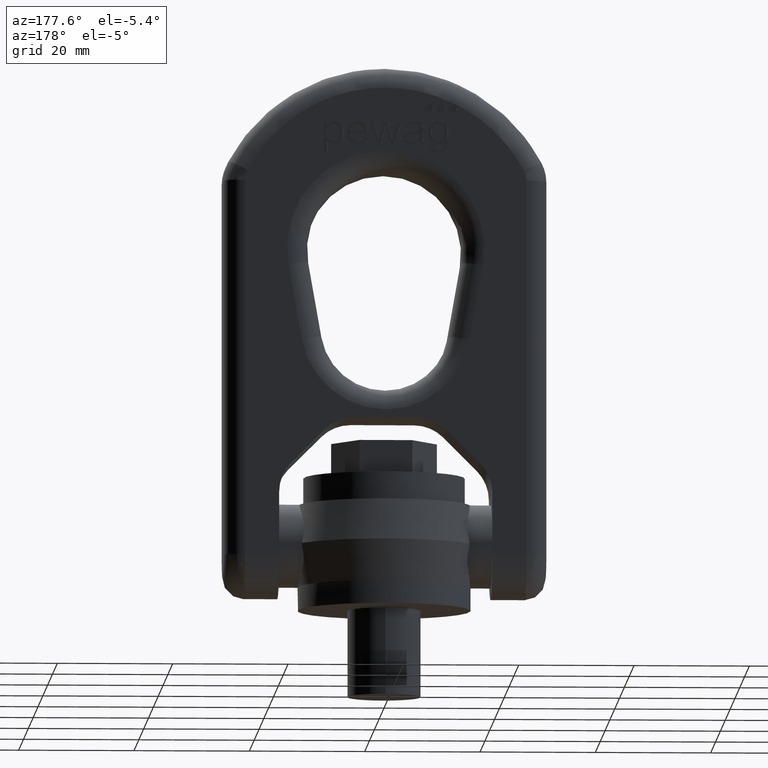
[diagram: clean part render]
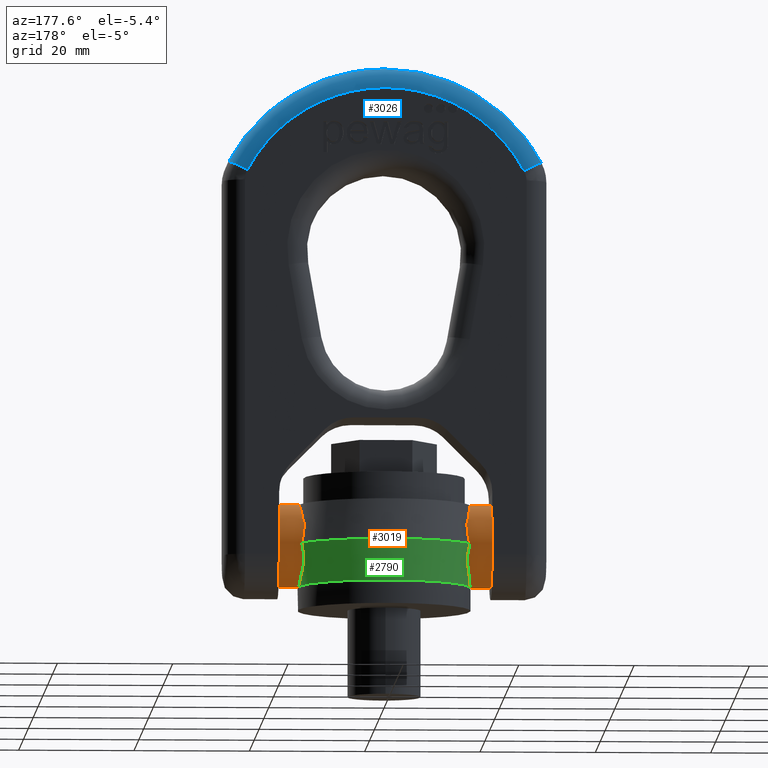
[diagram: same view with three faces highlighted in distinct colors, each labeled with its STEP entity id]
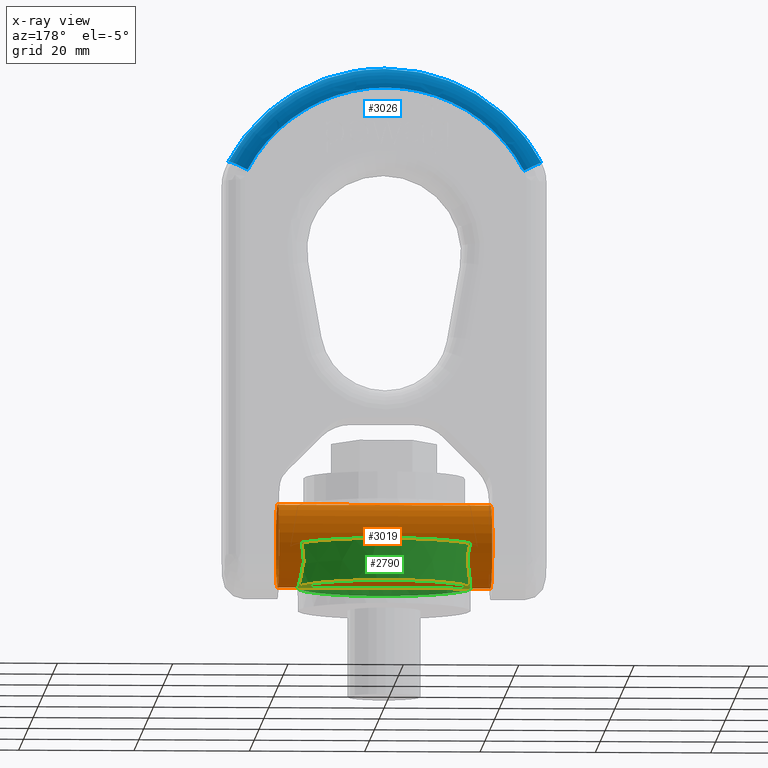
[diagram: x-ray of the same camera — body ghosted, the three highlighted faces saturated]
A machine part, auxiliary view with three faces highlighted in distinct colors.
The next image is the same camera in x-ray (body ghosted, the three faces saturated) — at least one of them is partly hidden behind the body in this view.
Their STEP definitions:

[orange] entity #3019 — the highlighted cylindrical surface (bore or boss wall) has radius 7.2 mm, axis along (-1, 0, 0).
#3019=ADVANCED_FACE('',(#3135,#3136),#3060,.T.);
#3060=CYLINDRICAL_SURFACE('',#6029,7.2);
#3135=FACE_BOUND('',#3411,.T.);
#3136=FACE_BOUND('',#3412,.T.);
#3411=EDGE_LOOP('',(#4613,#4614));
#3412=EDGE_LOOP('',(#4615,#4616));
#4613=ORIENTED_EDGE('',*,*,#5162,.F.);
#4614=ORIENTED_EDGE('',*,*,#5716,.F.);
#4615=ORIENTED_EDGE('',*,*,#5166,.F.);
#4616=ORIENTED_EDGE('',*,*,#5717,.F.);
#4729=VERTEX_POINT('',#7037);
#4731=VERTEX_POINT('',#7040);
#4733=VERTEX_POINT('',#7046);
#4735=VERTEX_POINT('',#7049);
#5162=EDGE_CURVE('',#4729,#4731,#5757,.T.);
#5166=EDGE_CURVE('',#4733,#4735,#5758,.T.);
#5716=EDGE_CURVE('',#4731,#4729,#5801,.T.);
#5717=EDGE_CURVE('',#4735,#4733,#5802,.T.);
#5757=CIRCLE('',#5859,7.2);
#5758=CIRCLE('',#5861,7.2);
#5801=CIRCLE('',#6012,7.2);
#5802=CIRCLE('',#6014,7.2);
#5859=AXIS2_PLACEMENT_3D('',#7039,#6165,#6166);
#5861=AXIS2_PLACEMENT_3D('',#7048,#6172,#6173);
#6012=AXIS2_PLACEMENT_3D('',#9690,#6825,#6826);
#6014=AXIS2_PLACEMENT_3D('',#9692,#6829,#6830);
#6029=AXIS2_PLACEMENT_3D('',#9714,#6866,#6867);
#6165=DIRECTION('',(-1.,0.,1.50845519650157E-16));
#6166=DIRECTION('',(0.,0.,-1.));
#6172=DIRECTION('',(1.,0.,1.50845519650157E-16));
#6173=DIRECTION('',(0.,0.,1.));
#6825=DIRECTION('',(-1.,0.,1.50845519650157E-16));
#6826=DIRECTION('',(0.,0.,-1.));
#6829=DIRECTION('',(1.,0.,1.50845519650157E-16));
#6830=DIRECTION('',(0.,0.,1.));
#6866=DIRECTION('',(-1.,0.,0.));
#6867=DIRECTION('',(0.,0.,1.));
#7037=CARTESIAN_POINT('',(-18.48,-7.2,11.2));
#7039=CARTESIAN_POINT('',(-18.48,0.,11.2));
#7040=CARTESIAN_POINT('',(-18.48,7.20000000000004,11.2));
#7046=CARTESIAN_POINT('',(18.48,-7.2,11.2));
#7048=CARTESIAN_POINT('',(18.48,0.,11.2));
#7049=CARTESIAN_POINT('',(18.48,7.19999999999996,11.2));
#9690=CARTESIAN_POINT('',(-18.48,0.,11.2));
#9692=CARTESIAN_POINT('',(18.48,0.,11.2));
#9714=CARTESIAN_POINT('',(28.,0.,11.2));

[blue] entity #3026 — the highlighted toroidal blend (fillet) surface has major radius 27.1778 mm and minor (blend) radius 3.6 mm.
#202=TOROIDAL_SURFACE('',#6041,27.1777777777778,3.6);
#2651=FACE_OUTER_BOUND('',#3419,.T.);
#3026=ADVANCED_FACE('',(#2651),#202,.T.);
#3419=EDGE_LOOP('',(#4641,#4642,#4643,#4644));
#4641=ORIENTED_EDGE('',*,*,#5734,.T.);
#4642=ORIENTED_EDGE('',*,*,#5369,.F.);
#4643=ORIENTED_EDGE('',*,*,#5736,.F.);
#4644=ORIENTED_EDGE('',*,*,#5280,.F.);
#4831=VERTEX_POINT('',#7404);
#4841=VERTEX_POINT('',#7426);
#4928=VERTEX_POINT('',#7762);
#4929=VERTEX_POINT('',#7764);
#5280=EDGE_CURVE('',#4841,#4831,#5783,.T.);
#5369=EDGE_CURVE('',#4928,#4929,#5791,.T.);
#5734=EDGE_CURVE('',#4841,#4929,#5812,.T.);
#5736=EDGE_CURVE('',#4831,#4928,#5814,.T.);
#5783=CIRCLE('',#5890,27.1777777777778);
#5791=CIRCLE('',#5904,30.7777777777778);
#5812=CIRCLE('',#6037,3.6);
#5814=CIRCLE('',#6040,3.6);
#5890=AXIS2_PLACEMENT_3D('',#7427,#6285,#6286);
#5904=AXIS2_PLACEMENT_3D('',#7763,#6360,#6361);
#6037=AXIS2_PLACEMENT_3D('',#9754,#6882,#6883);
#6040=AXIS2_PLACEMENT_3D('',#9773,#6888,#6889);
#6041=AXIS2_PLACEMENT_3D('',#9774,#6890,#6891);
#6285=DIRECTION('',(2.34291072916505E-15,1.,0.));
#6286=DIRECTION('',(-1.,2.32974923081922E-15,0.));
#6360=DIRECTION('',(-2.34291072916505E-15,-1.,0.));
#6361=DIRECTION('',(-1.,2.33905854973768E-15,0.));
#6882=DIRECTION('',(0.470899961611151,-9.07645798048268E-16,0.882186616399623));
#6883=DIRECTION('',(0.882186616399624,0.,-0.470899961611152));
#6888=DIRECTION('',(0.470899961611152,-9.07645798048269E-16,-0.882186616399623));
#6889=DIRECTION('',(-0.882186616399623,0.,-0.470899961611152));
#6890=DIRECTION('',(2.34291072916505E-15,1.,0.));
#6891=DIRECTION('',(-1.,2.33905854973768E-15,0.));
#7404=CARTESIAN_POINT('',(23.9758718190387,7.19999999999994,76.0202367344542));
#7426=CARTESIAN_POINT('',(-23.9758718190386,7.20000000000006,76.0202367344542));
#7427=CARTESIAN_POINT('',(8.43447862499418E-15,7.2,63.2222222222222));
#7762=CARTESIAN_POINT('',(27.1517436380773,3.59999999999993,77.7154765962543));
#7763=CARTESIAN_POINT('',(0.,3.59999999999999,63.2222222222222));
#7764=CARTESIAN_POINT('',(-27.1517436380773,3.60000000000006,77.7154765962543));
#9754=CARTESIAN_POINT('',(-23.9758718190386,3.60000000000006,76.0202367344542));
#9773=CARTESIAN_POINT('',(23.9758718190387,3.59999999999994,76.0202367344542));
#9774=CARTESIAN_POINT('',(0.,3.6,63.2222222222222));

[green] entity #2790 — the highlighted conical surface has half-angle 10 deg.
#2435=CONICAL_SURFACE('',#5837,15.,10.);
#2790=ADVANCED_FACE('',(#3075,#3076),#2435,.T.);
#3075=FACE_BOUND('',#3144,.T.);
#3076=FACE_BOUND('',#3145,.T.);
#3144=EDGE_LOOP('',(#3440));
#3145=EDGE_LOOP('',(#3441));
#3440=ORIENTED_EDGE('',*,*,#5121,.T.);
#3441=ORIENTED_EDGE('',*,*,#5117,.F.);
#4697=VERTEX_POINT('',#6938);
#4701=VERTEX_POINT('',#6950);
#5117=EDGE_CURVE('',#4697,#4697,#5749,.T.);
#5121=EDGE_CURVE('',#4701,#4701,#5753,.T.);
#5749=CIRCLE('',#5828,15.);
#5753=CIRCLE('',#5836,16.2519215630301);
#5828=AXIS2_PLACEMENT_3D('',#6937,#6066,#6067);
#5836=AXIS2_PLACEMENT_3D('',#6949,#6082,#6083);
#5837=AXIS2_PLACEMENT_3D('',#6951,#6084,#6085);
#6066=DIRECTION('',(0.,0.,-1.));
#6067=DIRECTION('',(-1.,0.,0.));
#6082=DIRECTION('',(0.,0.,-1.));
#6083=DIRECTION('',(-1.,0.,0.));
#6084=DIRECTION('',(0.,0.,1.));
#6085=DIRECTION('',(1.,0.,1.81336000761973E-17));
#6937=CARTESIAN_POINT('',(0.,0.,4.));
#6938=CARTESIAN_POINT('',(-15.,0.,4.));
#6949=CARTESIAN_POINT('',(0.,0.,11.1));
#6950=CARTESIAN_POINT('',(-16.2519215630301,0.,11.1));
#6951=CARTESIAN_POINT('',(0.,0.,4.));